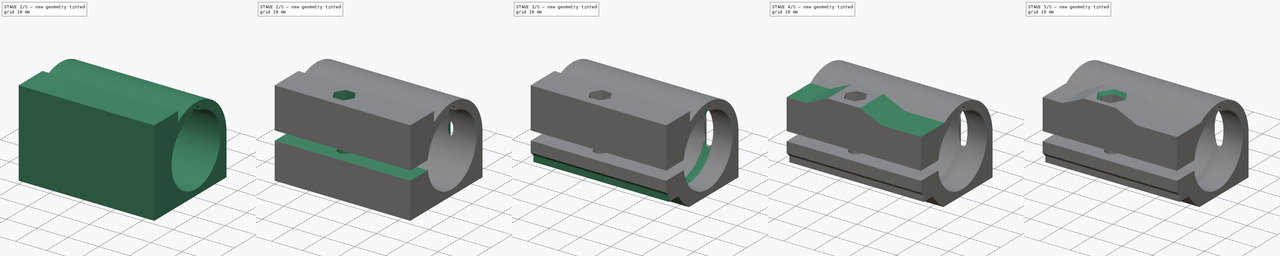
[diagram: build sequence overview — one tinted view per stage of 5, left to right]
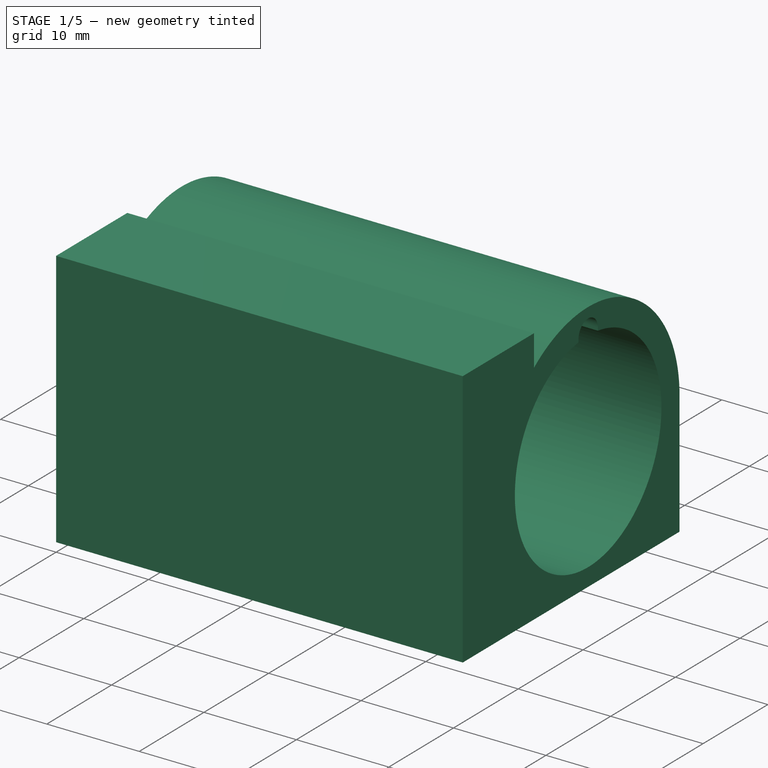
[diagram: stage 1 of 5 — iso view after this stage's code; geometry added in this stage tinted green]
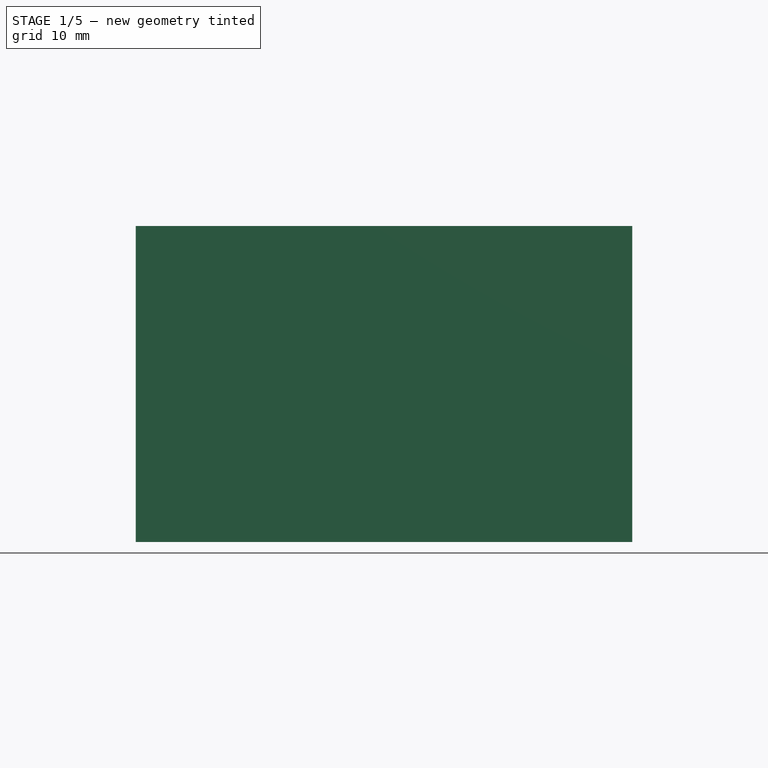
[diagram: stage 1 of 5 — front view after this stage's code; geometry added in this stage tinted green]
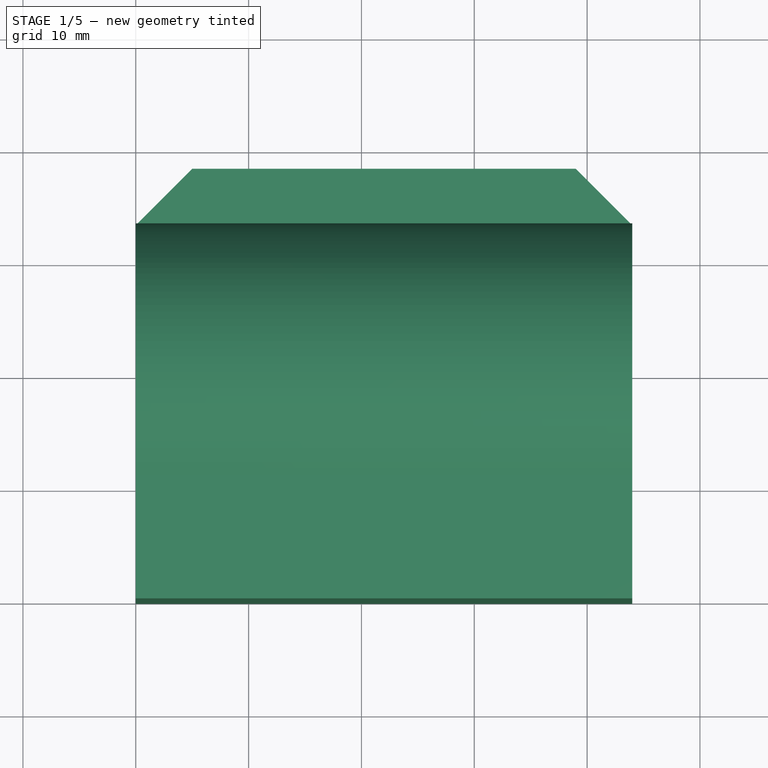
[diagram: stage 1 of 5 — top view after this stage's code; geometry added in this stage tinted green]
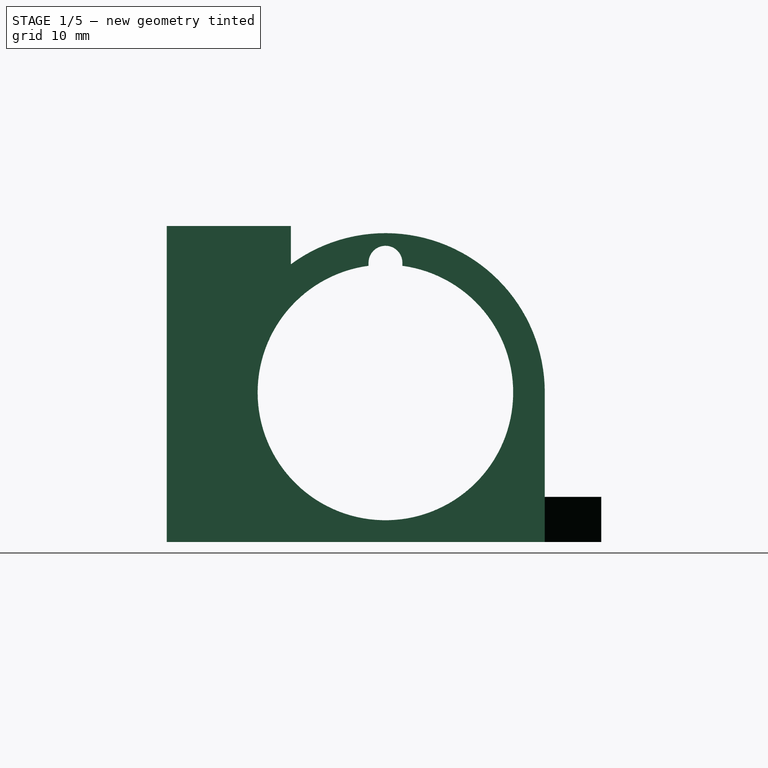
[diagram: stage 1 of 5 — right view after this stage's code; geometry added in this stage tinted green]
FCSTD DOCUMENT  (FreeCAD 0.18R4 (GitTag))
Label: x_bearing_holder_v0.2.2
License: All rights reserved
LicenseURL: http://en.wikipedia.org/wiki/All_rights_reserved
objects: Sketcher::SketchObject×19, PartDesign::Pocket×11, PartDesign::Chamfer×3, PartDesign::Pad×2, PartDesign::Groove×1, PartDesign::Fillet×1, PartDesign::Body×1
note: 52 computed .brp shape members not serialized (recipe doc carries the construction recipe); baked Part::Feature solids carry a one-line shape summary decoded from their .brp

FEATURE [Sketcher::SketchObject] Sketch
  MapMode = 5
  Support = -> [XY_Plane]
  sketch-geometry (8):
    g0: LineSegment [constr] StartX=0 StartY=33.5 StartZ=0 EndX=44 EndY=33.5 EndZ=0
    g1: LineSegment StartX=44 StartY=33.5 StartZ=0 EndX=44 EndY=0 EndZ=0
    g2: LineSegment [constr] StartX=44 StartY=0 StartZ=0 EndX=0 EndY=0 EndZ=0
    g3: LineSegment StartX=0 StartY=0 StartZ=0 EndX=0 EndY=33.5 EndZ=0
    g4: LineSegment StartX=0 StartY=33.5 StartZ=0 EndX=5 EndY=38.5 EndZ=0
    g5: LineSegment StartX=5 StartY=38.5 StartZ=0 EndX=39 EndY=38.5 EndZ=0
    g6: LineSegment StartX=39 StartY=38.5 StartZ=0 EndX=44 EndY=33.5 EndZ=0
    g7: LineSegment StartX=0 StartY=0 StartZ=0 EndX=44 EndY=0 EndZ=0
  constraints (21):
    c: Horizontal(g0)
    c: Coincident(g0,g1)
    c: Vertical(g1)
    c: Coincident(g1,g2)
    c: Coincident(g2,g3)
    c: Coincident(g3,g0)
    c: Vertical(g3)
    c: Coincident(g3,g4)
    c: Coincident(g4,g5)
    c: Horizontal(g5)
    c: Coincident(g5,g6)
    c: Coincident(g6,g1)
    c: DistanceX(g2,g2) = 44
    c: Coincident(g7,g1)
    c: Equal(g4,g6)
    c: Angle(g4) = 0.785398
    c: DistanceY(g3,g3) = 33.5
    c: Coincident(g2,g-1)
    c: DistanceY(g4,g4) = 5
    c: Coincident(g7,g3)
    c: Horizontal(g7)
FEATURE [Sketcher::SketchObject] Sketch001
  MapMode = 5
  Placement = pos=(0,0,0) rot=(0.57735,-0.57735,-0.57735;2.0944rad)
  sketch-geometry (1):
    g0: Circle CenterX=-19.375 CenterY=12.25 CenterZ=0 NormalX=0 NormalY=0 NormalZ=1 AngleXU=0 Radius=11.325
  constraints (3):
    c: DistanceX(g0) = -19.375
    c: DistanceY(g0) = 12.25
    c: Radius(g0) = 11.325
FEATURE [Sketcher::SketchObject] Sketch002
  MapMode = 5
  Placement = pos=(0,0,27) rot=(0,0,1;0rad)
  sketch-geometry (5):
    g0: LineSegment StartX=35.625 StartY=38.5 StartZ=0 EndX=0 EndY=38.5 EndZ=0
    g1: LineSegment StartX=0 StartY=38.5 StartZ=0 EndX=0 EndY=33.5 EndZ=0
    g2: LineSegment StartX=0 StartY=33.5 StartZ=0 EndX=31.625 EndY=33.5 EndZ=0
    g3: LineSegment StartX=31.625 StartY=33.5 StartZ=0 EndX=31.625 EndY=34.5 EndZ=0
    g4: ArcOfCircle CenterX=35.625 CenterY=34.5 CenterZ=0 NormalX=0 NormalY=0 NormalZ=1 AngleXU=0 Radius=4 StartAngle=1.5708 EndAngle=3.14159
  constraints (14):
    c: Coincident(g0,g1)
    c: Horizontal(g0)
    c: Vertical(g1)
    c: PointOnObject(g1,g-2)
    c: DistanceY(g1) = 33.5
    c: DistanceY(g1,g1) = 5
    c: Coincident(g2,g1)
    c: Coincident(g3,g2)
    c: Vertical(g3)
    c: DistanceX(g4) = 35.625
    c: DistanceY(g4) = 34.5
    c: Horizontal(g2)
    c: Tangent(g0,g4) = -1.5708
    c: Tangent(g4,g3) = 1.5708
FEATURE [Sketcher::SketchObject] Sketch003
  MapMode = 5
  Placement = pos=(0,0,27) rot=(0,0,1;0rad)
  sketch-geometry (14):
    g0: ArcOfCircle CenterX=35.625 CenterY=34.5 CenterZ=0 NormalX=0 NormalY=0 NormalZ=1 AngleXU=0 Radius=2 StartAngle=0 EndAngle=3.14159
    g1: ArcOfCircle CenterX=35.625 CenterY=32.5 CenterZ=0 NormalX=0 NormalY=0 NormalZ=1 AngleXU=0 Radius=2 StartAngle=3.14159 EndAngle=6.28319
    g2: LineSegment StartX=33.625 StartY=34.5 StartZ=0 EndX=33.625 EndY=32.5 EndZ=0
    g3: LineSegment StartX=37.625 StartY=34.5 StartZ=0 EndX=37.625 EndY=32.5 EndZ=0
    g4: Circle CenterX=18.75 CenterY=5.5 CenterZ=0 NormalX=0 NormalY=0 NormalZ=1 AngleXU=0 Radius=2
    g5: LineSegment [constr] StartX=2.75 StartY=67.375 StartZ=0 EndX=34.75 EndY=67.375 EndZ=0
    g6: LineSegment [constr] StartX=34.75 StartY=67.375 StartZ=0 EndX=34.75 EndY=8.375 EndZ=0
    g7: LineSegment [constr] StartX=34.75 StartY=8.375 StartZ=0 EndX=2.75 EndY=8.375 EndZ=0
    g8: LineSegment [constr] StartX=2.75 StartY=8.375 StartZ=0 EndX=2.75 EndY=67.375 EndZ=0
    g9: LineSegment [constr] StartX=2.75 StartY=8.375 StartZ=0 EndX=34.75 EndY=8.375 EndZ=0
    g10: LineSegment [constr] StartX=34.75 StartY=8.375 StartZ=0 EndX=34.75 EndY=30.375 EndZ=0
    g11: LineSegment [constr] StartX=34.75 StartY=30.375 StartZ=0 EndX=2.75 EndY=30.375 EndZ=0
    g12: LineSegment [constr] StartX=2.75 StartY=30.375 StartZ=0 EndX=2.75 EndY=8.375 EndZ=0
    g13: LineSegment [constr] StartX=2.75 StartY=19.375 StartZ=0 EndX=34.75 EndY=19.375 EndZ=0
  constraints (39):
    c: Tangent(g0,g3) = 1.5708
    c: Tangent(g0,g2) = -1.5708
    c: Tangent(g2,g1) = -1.5708
    c: Tangent(g3,g1) = 1.5708
    c: Vertical(g2)
    c: Equal(g0,g1)
    c: DistanceY(g1) = 32.5
    c: DistanceY(g2,g2) = 2
    c: Radius(g1) = 2
    c: Equal(g4,g1)
    c: Coincident(g5,g6)
    c: Coincident(g6,g7)
    c: Coincident(g7,g8)
    c: Coincident(g8,g5)
    c: Horizontal(g5)
    c: Horizontal(g7)
    c: Vertical(g6)
    c: Vertical(g8)
    c: DistanceX(g5,g5) = 32
    c: DistanceX(g5) = 2.75
    c: Coincident(g9,g10)
    c: Coincident(g10,g11)
    c: Coincident(g11,g12)
    c: Coincident(g12,g9)
    c: Horizontal(g11)
    c: Vertical(g10)
    c: Vertical(g12)
    c: Coincident(g6,g9)
    c: Coincident(g7,g9)
    c: DistanceY(g6,g10) = 22
    c: PointOnObject(g13,g8)
    c: PointOnObject(g13,g6)
    c: Horizontal(g13)
    c: DistanceY(g13) = 19.375
    c: DistanceY(g13,g10) = 11
    c: DistanceX(g0) = 35.625
    c: DistanceY(g8,g8) = 59
    c: DistanceX(g4,g6) = 16
    c: DistanceY(g4) = 5.5
FEATURE [Sketcher::SketchObject] Sketch004
  MapMode = 5
  Placement = pos=(0,0,27) rot=(0,0,1;0rad)
  sketch-geometry (7):
    g0: LineSegment StartX=17.075 StartY=8.40119 StartZ=0 EndX=15.4 EndY=5.5 EndZ=0
    g1: LineSegment StartX=15.4 StartY=5.5 StartZ=0 EndX=17.075 EndY=2.59881 EndZ=0
    g2: LineSegment StartX=17.075 StartY=2.59881 StartZ=0 EndX=20.425 EndY=2.59881 EndZ=0
    g3: LineSegment StartX=20.425 StartY=2.59881 StartZ=0 EndX=22.1 EndY=5.5 EndZ=0
    g4: LineSegment StartX=22.1 StartY=5.5 StartZ=0 EndX=20.425 EndY=8.40119 EndZ=0
    g5: LineSegment StartX=20.425 StartY=8.40119 StartZ=0 EndX=17.075 EndY=8.40119 EndZ=0
    g6: Circle [constr] CenterX=18.75 CenterY=5.5 CenterZ=0 NormalX=0 NormalY=0 NormalZ=1 AngleXU=0 Radius=3.35
  constraints (17):
    c: Coincident(g0,g1)
    c: Coincident(g1,g2)
    c: Coincident(g2,g3)
    c: Coincident(g3,g4)
    c: Coincident(g4,g5)
    c: Coincident(g5,g0)
    c: Equal(g0, g1-g5) x5
    c: PointOnObject(g0,g6)
    c: PointOnObject(g1,g6)
    c: PointOnObject(g2,g6)
    c: PointOnObject(g3,g6)
    c: PointOnObject(g4,g6)
    c: PointOnObject(g5,g6)
    c: Horizontal(g5)
    c: DistanceY(g6) = 5.5
    c: Radius(g6) = 3.35
    c: DistanceX(g-1,g6) = 18.75
FEATURE [Sketcher::SketchObject] Sketch005
  MapMode = 5
  Placement = pos=(0,0,0) rot=(0.57735,-0.57735,-0.57735;2.0944rad)
  sketch-geometry (4):
    g0: LineSegment StartX=-10.5 StartY=13.75 StartZ=0 EndX=3.5 EndY=13.75 EndZ=0
    g1: LineSegment StartX=3.5 StartY=13.75 StartZ=0 EndX=3.5 EndY=10.75 EndZ=0
    g2: LineSegment StartX=3.5 StartY=10.75 StartZ=0 EndX=-10.5 EndY=10.75 EndZ=0
    g3: LineSegment StartX=-10.5 StartY=10.75 StartZ=0 EndX=-10.5 EndY=13.75 EndZ=0
  constraints (12):
    c: Coincident(g0,g1)
    c: Coincident(g1,g2)
    c: Coincident(g2,g3)
    c: Coincident(g3,g0)
    c: Horizontal(g0)
    c: Horizontal(g2)
    c: Vertical(g1)
    c: Vertical(g3)
    c: DistanceX(g1) = 3.5
    c: DistanceY(g1,g1) = 3
    c: DistanceX(g0,g0) = 14
    c: DistanceY(g2) = 10.75
FEATURE [Sketcher::SketchObject] Sketch006
  MapMode = 5
  Placement = pos=(54,0,0) rot=(0.57735,0.57735,0.57735;2.0944rad)
  sketch-geometry (8):
    g0: ArcOfCircle CenterX=19.5 CenterY=12.25 CenterZ=0 NormalX=0 NormalY=0 NormalZ=1 AngleXU=0 Radius=16 StartAngle=3.67834 EndAngle=4.11735
    g1: LineSegment StartX=10.5313 StartY=-1 StartZ=0 EndX=-3.5 EndY=-1 EndZ=0
    g2: LineSegment StartX=-3.5 StartY=-1 StartZ=0 EndX=-3.5 EndY=10.75 EndZ=0
    g3: LineSegment StartX=-3.5 StartY=10.75 StartZ=0 EndX=0 EndY=10.75 EndZ=0
    g4: LineSegment StartX=0 StartY=10.75 StartZ=0 EndX=0 EndY=7.25 EndZ=0
    g5: LineSegment StartX=1.25 StartY=4.06847 StartZ=0 EndX=5.75 EndY=4.06847 EndZ=0
    g6: LineSegment StartX=1.25 StartY=4.06847 StartZ=0 EndX=1.25 EndY=6 EndZ=0
    g7: LineSegment StartX=1.25 StartY=6 StartZ=0 EndX=0 EndY=7.25 EndZ=0
  constraints (25):
    c: DistanceX(g0) = 19.5
    c: DistanceY(g0) = 12.25
    c: Horizontal(g1)
    c: Coincident(g1,g2)
    c: Vertical(g2)
    c: Coincident(g2,g3)
    c: Horizontal(g3)
    c: Coincident(g3,g4)
    c: Vertical(g4)
    c: Horizontal(g5)
    c: Coincident(g0,g5)
    c: PointOnObject(g3,g-2)
    c: DistanceX(g3,g3) = 3.5
    c: DistanceY(g3) = 10.75
    c: Coincident(g0,g1)
    c: Radius(g0) = 16
    c: Coincident(g5,g6)
    c: Vertical(g6)
    c: Coincident(g6,g7)
    c: Coincident(g7,g4)
    c: Angle(g7) = 2.35619
    c: DistanceX(g5,g5) = 4.5
    c: DistanceY(g4,g4) = 3.5
    c: DistanceY(g7,g7) = 1.25
    c: DistanceY(g0) = -1
FEATURE [Sketcher::SketchObject] Sketch007
  MapMode = 5
  Placement = pos=(0,0,-1) rot=(1,0,0;3.14159rad)
  sketch-geometry (4):
    g0: Circle CenterX=27.38 CenterY=-35 CenterZ=0 NormalX=0 NormalY=0 NormalZ=1 AngleXU=0 Radius=2.35
    g1: Circle [constr] CenterX=27.38 CenterY=-35 CenterZ=0 NormalX=0 NormalY=0 NormalZ=1 AngleXU=0 Radius=2
    g2: Circle CenterX=11.38 CenterY=-35 CenterZ=0 NormalX=0 NormalY=0 NormalZ=1 AngleXU=0 Radius=2.35
    g3: LineSegment [constr] StartX=27.38 StartY=-35 StartZ=0 EndX=11.38 EndY=-35 EndZ=0
  constraints (10):
    c: DistanceY(g0) = -35
    c: Radius(g0) = 2.35
    c: Coincident(g1,g0)
    c: Radius(g1) = 2
    c: Coincident(g3,g0)
    c: Coincident(g3,g2)
    c: Horizontal(g3)
    c: DistanceX(g3,g3) = -16
    c: Radius(g2) = 2.35
    c: DistanceX(g2) = 11.38
FEATURE [Sketcher::SketchObject] Sketch008
  AttachmentOffset = pos=(0,0,1.5) rot=(0,0,1;0rad)
  MapMode = 5
  Placement = pos=(0,0,12.25) rot=(1,0,0;3.14159rad)
  sketch-geometry (18):
    g0: LineSegment [constr] StartX=34.75 StartY=-6.875 StartZ=0 EndX=36.25 EndY=-6.875 EndZ=0
    g1: LineSegment [constr] StartX=36.25 StartY=-6.875 StartZ=0 EndX=37.75 EndY=-8.375 EndZ=0
    g2: LineSegment [constr] StartX=37.75 StartY=-8.375 StartZ=0 EndX=34.75 EndY=-8.375 EndZ=0
    g3: LineSegment [constr] StartX=3.75 StartY=-8.375 StartZ=0 EndX=2.25 EndY=-6.875 EndZ=0
    g4: LineSegment [constr] StartX=2.25 StartY=-6.875 StartZ=0 EndX=0.75 EndY=-6.875 EndZ=0
    g5: LineSegment [constr] StartX=0.75 StartY=-6.875 StartZ=0 EndX=0.75 EndY=-8.375 EndZ=0
    g6: LineSegment [constr] StartX=0.75 StartY=-8.375 StartZ=0 EndX=3.75 EndY=-8.375 EndZ=0
    g7: LineSegment [constr] StartX=34.75 StartY=-6.875 StartZ=0 EndX=34.75 EndY=-8.375 EndZ=0
    g8: LineSegment [constr] StartX=3.75 StartY=-8.375 StartZ=0 EndX=3.75 EndY=-30.375 EndZ=0
    g9: LineSegment [constr] StartX=3.75 StartY=-19.375 StartZ=0 EndX=35.75 EndY=-19.375 EndZ=0
    g10: LineSegment StartX=37.75 StartY=-8.375 StartZ=0 EndX=37.75 EndY=-6.875 EndZ=0
    g11: LineSegment StartX=37.75 StartY=-6.875 StartZ=0 EndX=36.25 EndY=-6.875 EndZ=0
    g12: LineSegment StartX=36.25 StartY=-6.875 StartZ=0 EndX=34.75 EndY=-8.375 EndZ=0
    g13: LineSegment StartX=34.75 StartY=-8.375 StartZ=0 EndX=37.75 EndY=-8.375 EndZ=0
    g14: LineSegment StartX=3.75 StartY=-8.375 StartZ=0 EndX=3.75 EndY=-6.875 EndZ=0
    g15: LineSegment StartX=3.75 StartY=-6.875 StartZ=0 EndX=2.25 EndY=-6.875 EndZ=0
    g16: LineSegment StartX=2.25 StartY=-6.875 StartZ=0 EndX=0.75 EndY=-8.375 EndZ=0
    g17: LineSegment StartX=0.75 StartY=-8.375 StartZ=0 EndX=3.75 EndY=-8.375 EndZ=0
  constraints (49):
    c: Horizontal(g0)
    c: Coincident(g0,g1)
    c: Coincident(g1,g2)
    c: Horizontal(g2)
    c: DistanceY(g1,g1) = 1.5
    c: Coincident(g3,g4)
    c: Horizontal(g4)
    c: Coincident(g4,g5)
    c: Vertical(g5)
    c: Coincident(g5,g6)
    c: Coincident(g6,g3)
    c: Horizontal(g6)
    c: PointOnObject(g3,g2)
    c: DistanceX(g0,g0) = 1.5
    c: Angle(g3) = 2.35619
    c: Angle(g1) = -0.785398
    c: Coincident(g7,g0)
    c: Vertical(g7)
    c: Coincident(g2,g7)
    c: Equal(g5,g7)
    c: Equal(g4,g0)
    c: Vertical(g8)
    c: DistanceY(g8,g8) = 22
    c: PointOnObject(g9,g8)
    c: Horizontal(g9)
    c: DistanceY(g8,g9) = 11
    c: DistanceX(g9,g9) = 32
    c: DistanceY(g9) = -19.375
    c: Coincident(g3,g8)
    c: DistanceX(g3) = 3.75
    c: Coincident(g1,g10)
    c: Vertical(g10)
    c: Coincident(g10,g11)
    c: Horizontal(g11)
    c: Coincident(g11,g12)
    c: Coincident(g12,g13)
    c: Coincident(g13,g10)
    c: Coincident(g2,g12)
    c: Coincident(g0,g11)
    c: Vertical(g14)
    c: Coincident(g14,g15)
    c: Coincident(g15,g3)
    c: Horizontal(g15)
    c: Coincident(g15,g16)
    c: Coincident(g16,g5)
    c: Coincident(g16,g17)
    c: Coincident(g17,g14)
    c: Coincident(g3,g14)
    c: DistanceX(g12) = 34.75
FEATURE [Sketcher::SketchObject] Sketch010
  MapMode = 5
  Placement = pos=(0,0,27) rot=(0,0,1;0rad)
  sketch-geometry (1):
    g0: Circle CenterX=35.575 CenterY=4 CenterZ=0 NormalX=0 NormalY=0 NormalZ=1 AngleXU=0 Radius=2.75
  constraints (3):
    c: Radius(g0) = 2.75
    c: DistanceY(g0) = 4
    c: DistanceX(g0) = 35.575
FEATURE [Sketcher::SketchObject] Sketch013
  MapMode = 5
  Placement = pos=(0,0,-1) rot=(1,0,0;3.14159rad)
  sketch-geometry (1):
    g0: Circle CenterX=19.375 CenterY=-30.5 CenterZ=0 NormalX=0 NormalY=0 NormalZ=1 AngleXU=0 Radius=2.75
  constraints (3):
    c: DistanceY(g0) = -30.5
    c: DistanceX(g0) = 19.375
    c: Radius(g0) = 2.75
FEATURE [Sketcher::SketchObject] Sketch014
  MapMode = 5
  Placement = pos=(0,0,-1) rot=(1,0,0;3.14159rad)
  sketch-geometry (1):
    g0: Circle CenterX=18.75 CenterY=-5.5 CenterZ=0 NormalX=0 NormalY=0 NormalZ=1 AngleXU=0 Radius=3.5
  constraints (3):
    c: Radius(g0) = 3.5
    c: DistanceX(g0) = 18.75
    c: DistanceY(g0) = -5.5
FEATURE [Sketcher::SketchObject] Sketch016
  MapMode = 5
  Placement = pos=(0,0,0) rot=(0.57735,-0.57735,-0.57735;2.0944rad)
  sketch-geometry (10):
    g0: ArcOfCircle CenterX=-19.38 CenterY=12.25 CenterZ=0 NormalX=0 NormalY=0 NormalZ=1 AngleXU=0 Radius=14.12 StartAngle=0.935415 EndAngle=3.14159
    g1: LineSegment StartX=-11 StartY=27 StartZ=0 EndX=-38.5 EndY=27 EndZ=0
    g2: LineSegment StartX=-11 StartY=27 StartZ=0 EndX=-11 EndY=23.6144 EndZ=0
    g3: ArcOfCircle CenterX=-19.38 CenterY=12.25 CenterZ=0 NormalX=0 NormalY=0 NormalZ=1 AngleXU=0 Radius=1.5 StartAngle=3.14159 EndAngle=6.28319
    g4: ArcOfCircle CenterX=-19.38 CenterY=23.75 CenterZ=0 NormalX=0 NormalY=0 NormalZ=1 AngleXU=0 Radius=1.5 StartAngle=4e-16 EndAngle=3.14159
    g5: LineSegment StartX=-17.88 StartY=12.25 StartZ=0 EndX=-17.88 EndY=23.75 EndZ=0
    g6: LineSegment StartX=-20.88 StartY=12.25 StartZ=0 EndX=-20.88 EndY=23.75 EndZ=0
    g7: LineSegment StartX=-33.5 StartY=3 StartZ=0 EndX=-38.5 EndY=3 EndZ=0
    g8: LineSegment StartX=-38.5 StartY=3 StartZ=0 EndX=-38.5 EndY=27 EndZ=0
    g9: LineSegment StartX=-33.5 StartY=12.25 StartZ=0 EndX=-33.5 EndY=3 EndZ=0
  constraints (27):
    c: Horizontal(g1)
    c: DistanceX(g0) = -33.5
    c: DistanceY(g1) = 27
    c: DistanceX(g0) = -19.38
    c: DistanceY(g0) = 12.25
    c: Vertical(g2)
    c: Coincident(g1,g2)
    c: Coincident(g0,g2)
    c: Tangent(g3,g6) = 1.5708
    c: Tangent(g3,g5) = -1.5708
    c: Tangent(g5,g4) = -1.5708
    c: Tangent(g6,g4) = 1.5708
    c: Vertical(g5)
    c: Equal(g3,g4)
    c: Coincident(g0,g3)
    c: DistanceY(g5,g5) = 11.5
    c: Radius(g4) = 1.5
    c: Horizontal(g7)
    c: Coincident(g7,g8)
    c: Vertical(g8)
    c: DistanceX(g7) = -38.5
    c: DistanceY(g7) = 3
    c: Coincident(g1,g8)
    c: Coincident(g9,g7)
    c: Vertical(g9)
    c: Tangent(g9,g0) = -1.5708
    c: DistanceX(g1,g1) = 27.5
FEATURE [PartDesign::Pad] Pad
  Length = 27
  Length2 = 1
  Profile = -> Sketch
  Refine = true
  Type = 4
FEATURE [PartDesign::Pocket] Pocket
  BaseFeature = -> Pad
  Length = 22
  Length2 = 100
  Profile = -> Sketch002
  Refine = true
  Type = 0
FEATURE [PartDesign::Pocket] Pocket001
  BaseFeature = -> Pocket
  Length = 31.62
  Length2 = 100
  Profile = -> Sketch016
  Refine = true
  Type = 1
FEATURE [Sketcher::SketchObject] Sketch009
  MapMode = 5
  Placement = pos=(0,0,27) rot=(0,0,1;0rad)
  sketch-geometry (1):
    g0: Circle CenterX=35.62 CenterY=4 CenterZ=0 NormalX=0 NormalY=0 NormalZ=1 AngleXU=0 Radius=2.35
  constraints (3):
    c: Radius(g0) = 2.35
    c: DistanceY(g0) = 4
    c: DistanceX(g0) = 35.62
FEATURE [Sketcher::SketchObject] Sketch018
  MapMode = 5
  Placement = pos=(0,11,0) rot=(0,0.707107,0.707107;3.14159rad)
  sketch-geometry (12):
    g0: LineSegment StartX=-30.9696 StartY=23.75 StartZ=0 EndX=-24 EndY=27 EndZ=0
    g1: LineSegment StartX=-24 StartY=27 StartZ=0 EndX=-44 EndY=27 EndZ=0
    g2: LineSegment StartX=-13.5 StartY=27 StartZ=0 EndX=0 EndY=27 EndZ=0
    g3: LineSegment StartX=0 StartY=27 StartZ=0 EndX=0 EndY=23.75 EndZ=0
    g4: LineSegment StartX=0 StartY=23.75 StartZ=0 EndX=-6.53035 EndY=23.75 EndZ=0
    g5: LineSegment StartX=-6.53035 StartY=23.75 StartZ=0 EndX=-13.5 EndY=27 EndZ=0
    g6: LineSegment [constr] StartX=-44 StartY=27 StartZ=0 EndX=-6.53035 EndY=27 EndZ=0
    g7: LineSegment [constr] StartX=-6.53035 StartY=27 StartZ=0 EndX=-6.53035 EndY=23.75 EndZ=0
    g8: LineSegment [constr] StartX=-6.53035 StartY=23.75 StartZ=0 EndX=-44 EndY=23.75 EndZ=0
    g9: LineSegment [constr] StartX=-44 StartY=23.75 StartZ=0 EndX=-44 EndY=27 EndZ=0
    g10: LineSegment StartX=-30.9696 StartY=23.75 StartZ=0 EndX=-44 EndY=23.75 EndZ=0
    g11: LineSegment StartX=-44 StartY=23.75 StartZ=0 EndX=-44 EndY=27 EndZ=0
  constraints (33):
    c: Coincident(g0,g1)
    c: Horizontal(g1)
    c: PointOnObject(g2,g-2)
    c: Horizontal(g2)
    c: Coincident(g2,g3)
    c: PointOnObject(g3,g-2)
    c: Coincident(g3,g4)
    c: Horizontal(g4)
    c: Coincident(g5,g2)
    c: DistanceY(g1) = 27
    c: Angle(g0) = 0.436332
    c: Angle(g5) = 2.70526
    c: Coincident(g6,g7)
    c: Coincident(g7,g8)
    c: Coincident(g8,g9)
    c: Coincident(g9,g6)
    c: Horizontal(g6)
    c: Horizontal(g8)
    c: Vertical(g7)
    c: Vertical(g9)
    c: Coincident(g6,g1)
    c: PointOnObject(g2,g6)
    c: DistanceX(g2,g2) = 13.5
    c: Coincident(g4,g5)
    c: Coincident(g4,g7)
    c: Coincident(g0,g10)
    c: Horizontal(g10)
    c: Coincident(g10,g11)
    c: Coincident(g1,g11)
    c: DistanceX(g1) = -44
    c: Coincident(g8,g10)
    c: DistanceY(g11,g11) = 3.25
    c: DistanceX(g0,g2) = 10.5
FEATURE [Sketcher::SketchObject] Sketch020
  MapMode = 5
  Placement = pos=(0,38.5,0) rot=(0,0.707107,0.707107;3.14159rad)
  sketch-geometry (4):
    g0: LineSegment StartX=-22.125 StartY=0 StartZ=0 EndX=-16.625 EndY=0 EndZ=0
    g1: LineSegment StartX=-16.625 StartY=0 StartZ=0 EndX=-16.625 EndY=4 EndZ=0
    g2: LineSegment StartX=-16.625 StartY=4 StartZ=0 EndX=-22.125 EndY=4 EndZ=0
    g3: LineSegment StartX=-22.125 StartY=4 StartZ=0 EndX=-22.125 EndY=0 EndZ=0
  constraints (12):
    c: Coincident(g0,g1)
    c: Coincident(g1,g2)
    c: Coincident(g2,g3)
    c: Coincident(g3,g0)
    c: Horizontal(g0)
    c: Horizontal(g2)
    c: Vertical(g1)
    c: Vertical(g3)
    c: PointOnObject(g0,g-1)
    c: DistanceY(g1,g1) = 4
    c: DistanceX(g2,g2) = 5.5
    c: DistanceX(g2) = -22.125
FEATURE [Sketcher::SketchObject] Sketch021
  AttachmentOffset = pos=(0,0,-1) rot=(0,0,1;0rad)
  MapMode = 5
  Placement = pos=(0,0,0) rot=(1,0,0;3.14159rad)
  sketch-geometry (7):
    g0: LineSegment StartX=16.4738 StartY=-32.175 StartZ=0 EndX=19.375 EndY=-33.85 EndZ=0
    g1: LineSegment StartX=19.375 StartY=-33.85 StartZ=0 EndX=22.2762 EndY=-32.175 EndZ=0
    g2: LineSegment StartX=22.2762 StartY=-32.175 StartZ=0 EndX=22.2762 EndY=-28.825 EndZ=0
    g3: LineSegment StartX=22.2762 StartY=-28.825 StartZ=0 EndX=19.375 EndY=-27.15 EndZ=0
    g4: LineSegment StartX=19.375 StartY=-27.15 StartZ=0 EndX=16.4738 EndY=-28.825 EndZ=0
    g5: LineSegment StartX=16.4738 StartY=-28.825 StartZ=0 EndX=16.4738 EndY=-32.175 EndZ=0
    g6: Circle [constr] CenterX=19.375 CenterY=-30.5 CenterZ=0 NormalX=0 NormalY=0 NormalZ=1 AngleXU=0 Radius=3.35
  constraints (15):
    c: Coincident(g0,g1)
    c: Coincident(g1,g2)
    c: Coincident(g2,g3)
    c: Coincident(g3,g4)
    c: Coincident(g4,g5)
    c: Coincident(g5,g0)
    c: Equal(g0, g1-g5) x5
    c: PointOnObject(g0,g6)
    c: PointOnObject(g1,g6)
    c: PointOnObject(g2,g6)
    c: PointOnObject(g3,g6)
    c: PointOnObject(g4,g6)
    c: PointOnObject(g5,g6)
    c: Radius(g6) = 3.35
    c: Vertical(g5)
FEATURE [PartDesign::Pocket] Pocket002
  BaseFeature = -> Pocket001
  Length = 5
  Length2 = 100
  Profile = -> Sketch001
  Refine = true
  Type = 1
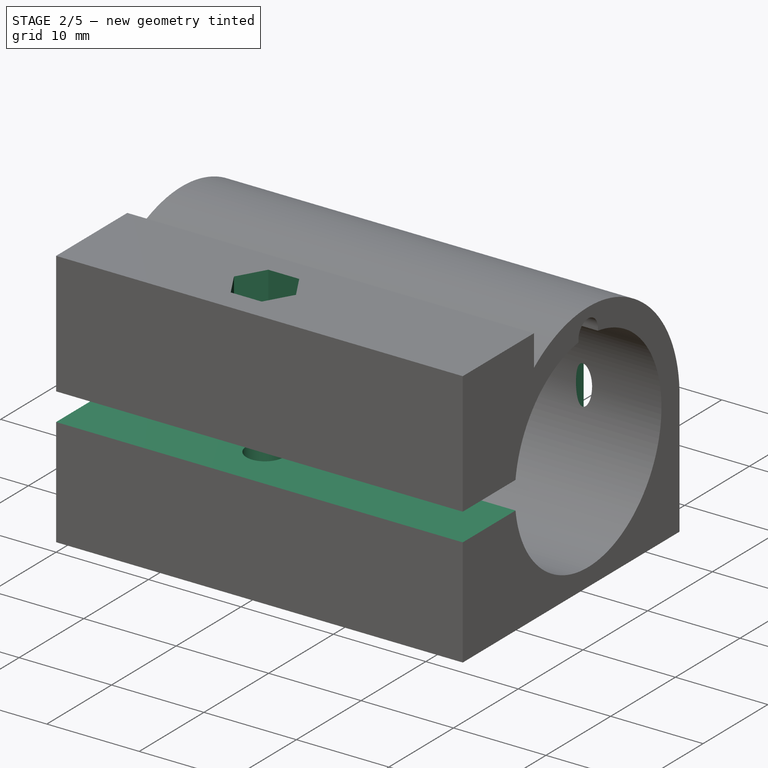
[diagram: stage 2 of 5 — iso view after this stage's code; geometry added in this stage tinted green]
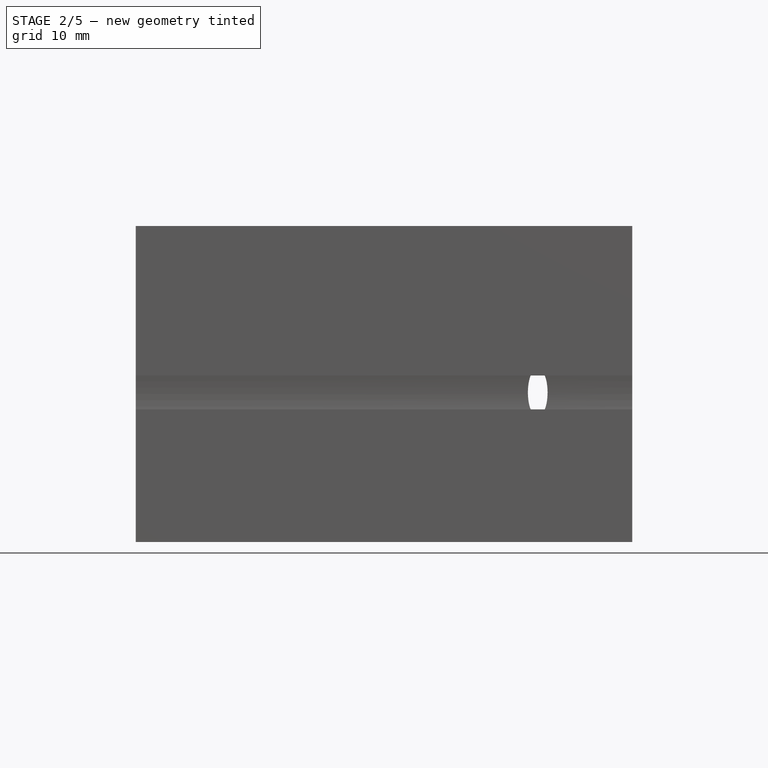
[diagram: stage 2 of 5 — front view after this stage's code; geometry added in this stage tinted green]
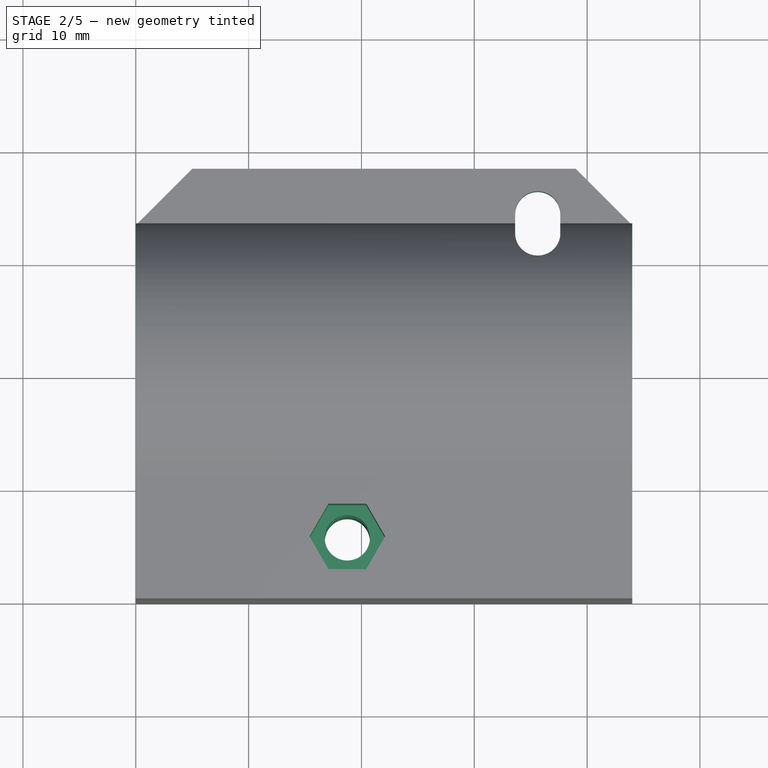
[diagram: stage 2 of 5 — top view after this stage's code; geometry added in this stage tinted green]
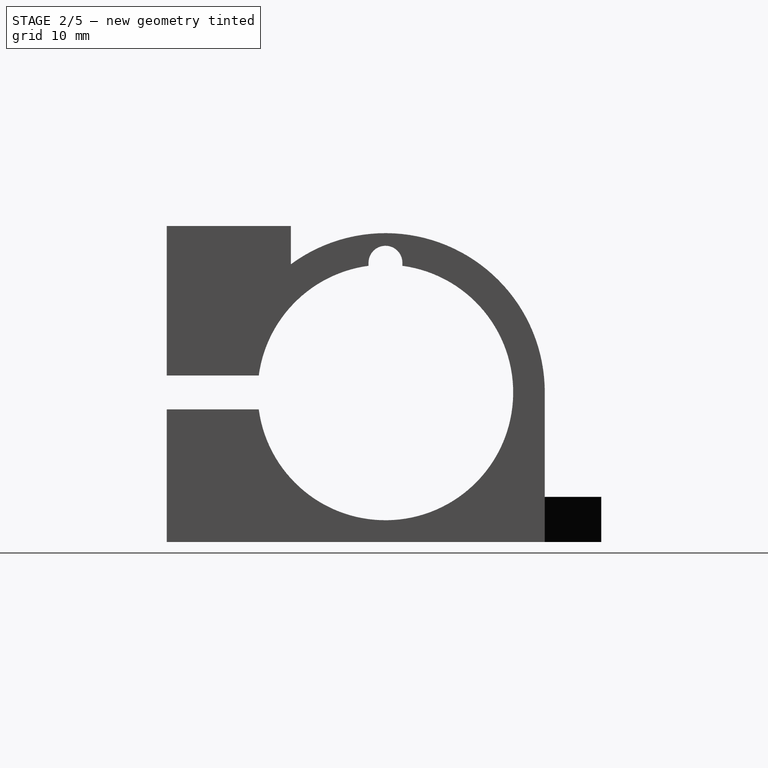
[diagram: stage 2 of 5 — right view after this stage's code; geometry added in this stage tinted green]
FEATURE [PartDesign::Pocket] Pocket003
  BaseFeature = -> Pocket002
  Length = 5
  Length2 = 100
  Profile = -> Sketch003
  Refine = true
  Type = 1
FEATURE [PartDesign::Pocket] Pocket004
  BaseFeature = -> Pocket003
  Length = 8
  Length2 = 100
  Profile = -> Sketch004
  Refine = true
  Type = 0
FEATURE [PartDesign::Pocket] Pocket005
  BaseFeature = -> Pocket004
  Length = 5
  Length2 = 100
  Profile = -> Sketch005
  Refine = true
  Type = 1
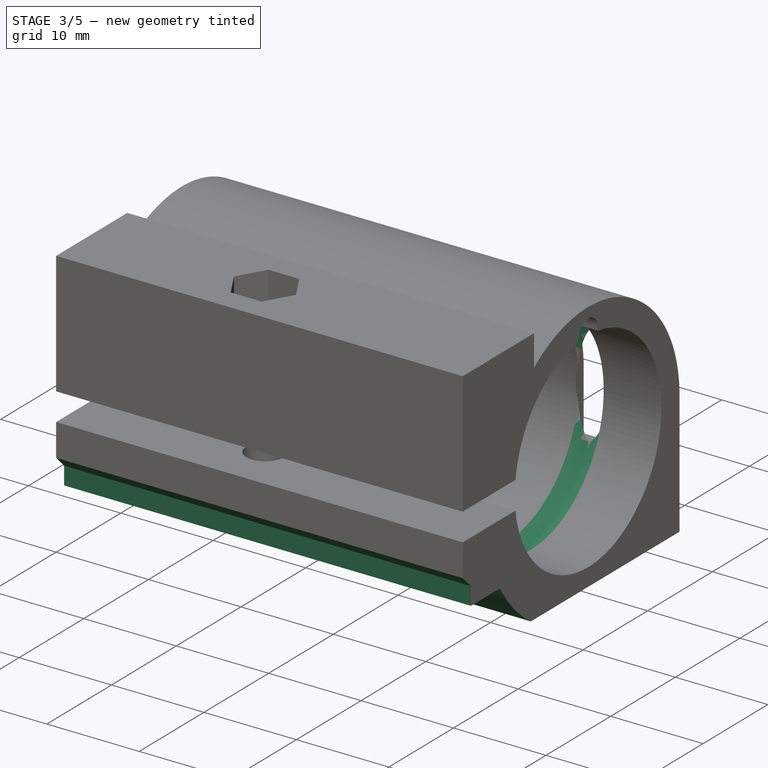
[diagram: stage 3 of 5 — iso view after this stage's code; geometry added in this stage tinted green]
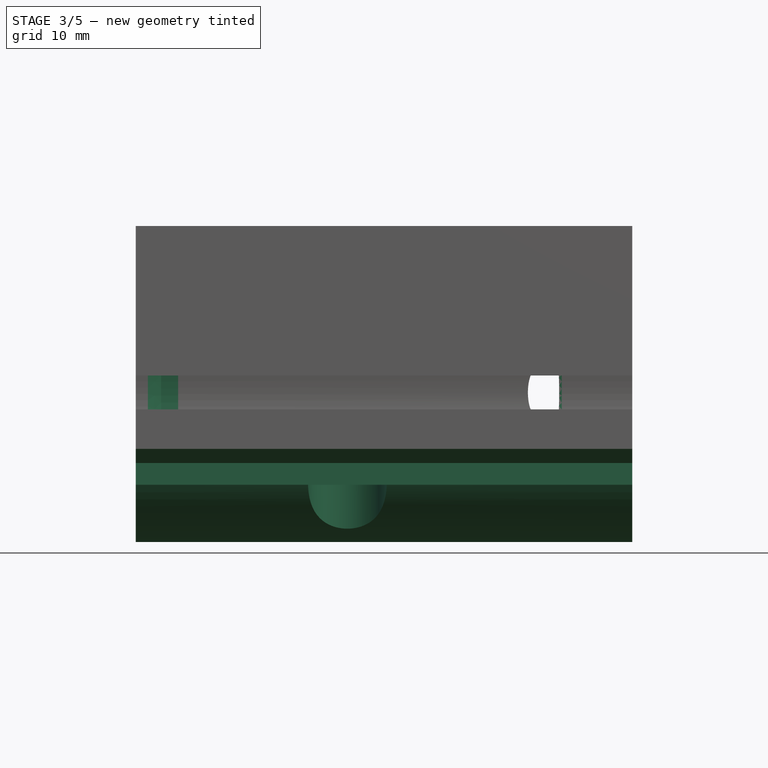
[diagram: stage 3 of 5 — front view after this stage's code; geometry added in this stage tinted green]
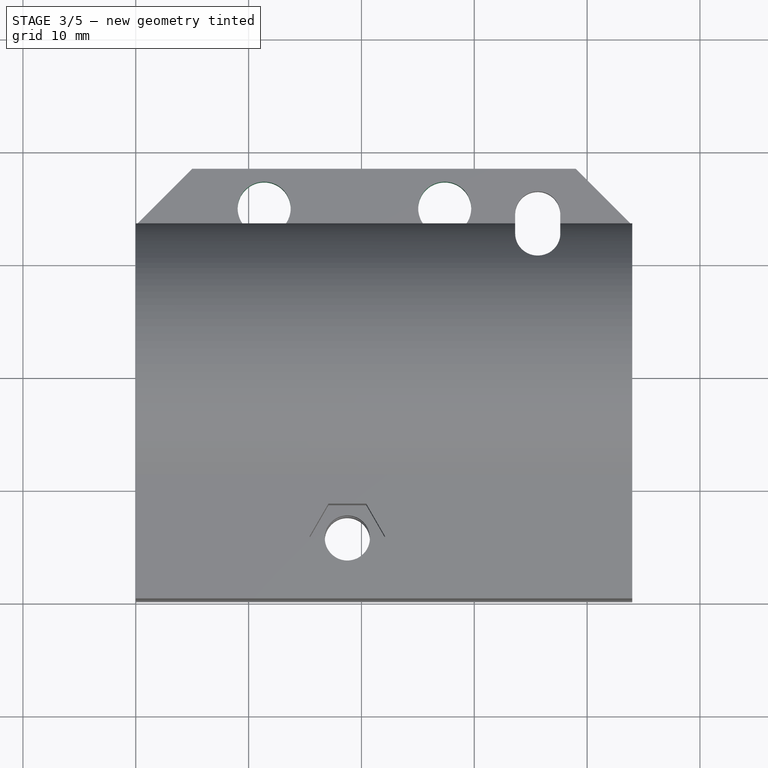
[diagram: stage 3 of 5 — top view after this stage's code; geometry added in this stage tinted green]
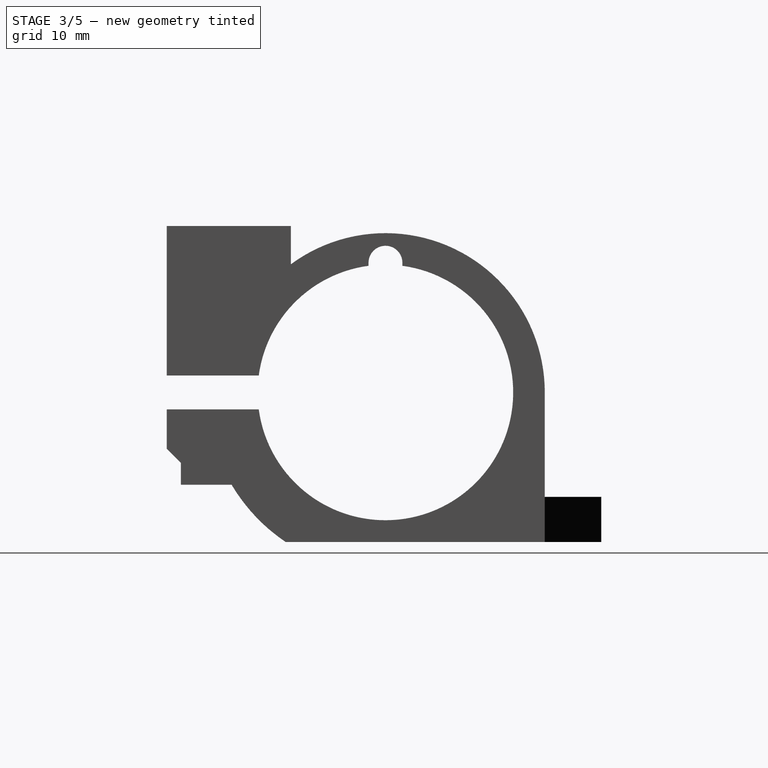
[diagram: stage 3 of 5 — right view after this stage's code; geometry added in this stage tinted green]
FEATURE [PartDesign::Pocket] Pocket006
  BaseFeature = -> Pocket005
  Length = 5
  Length2 = 100
  Profile = -> Sketch006
  Refine = true
  Type = 1
FEATURE [PartDesign::Pocket] Pocket007
  BaseFeature = -> Pocket006
  Length = 7
  Length2 = 100
  Profile = -> Sketch007
  Refine = true
  Type = 0
FEATURE [PartDesign::Groove] Groove
  Angle = 360
  Axis = (32,0,0)
  Base = (3.75,19.375,12.25)
  BaseFeature = -> Pocket007
  Profile = -> Sketch008
  ReferenceAxis = -> Sketch008 [Axis9]
  Refine = true
  Reversed = true
FEATURE [PartDesign::Pocket] Pocket008
  BaseFeature = -> Groove
  Length = 5.5
  Length2 = 100
  Profile = -> Sketch014
  Refine = true
  Type = 0
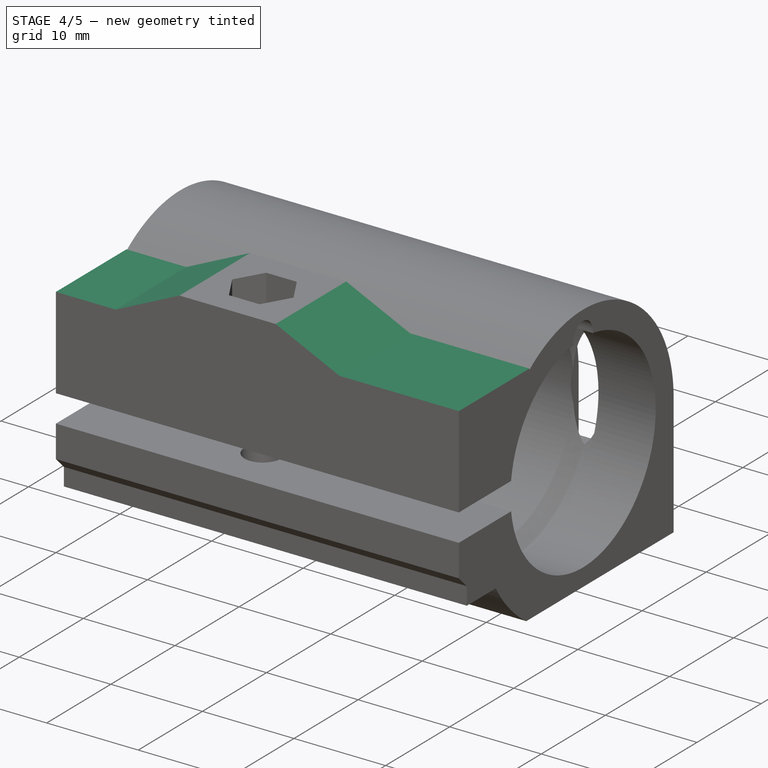
[diagram: stage 4 of 5 — iso view after this stage's code; geometry added in this stage tinted green]
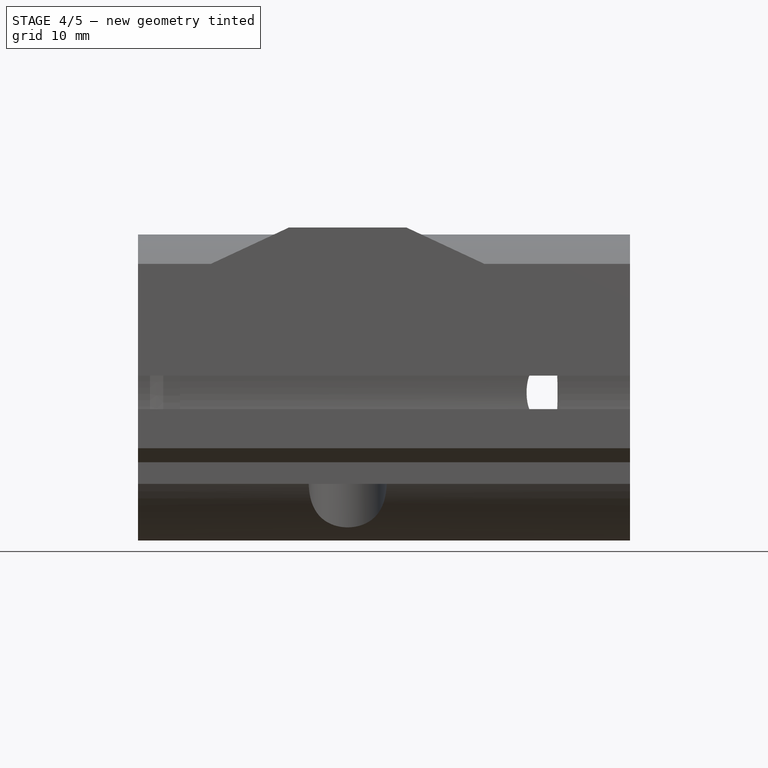
[diagram: stage 4 of 5 — front view after this stage's code; geometry added in this stage tinted green]
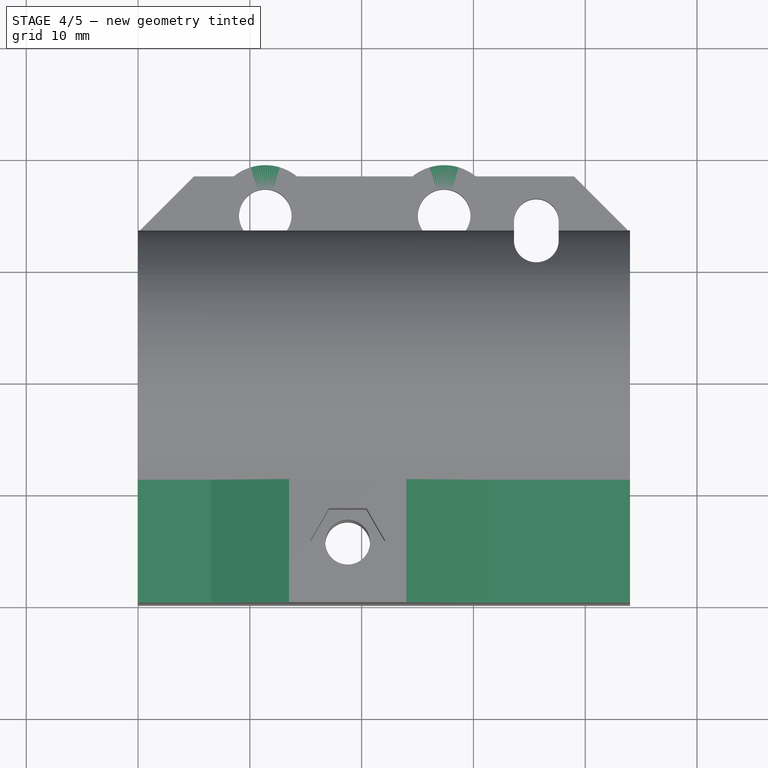
[diagram: stage 4 of 5 — top view after this stage's code; geometry added in this stage tinted green]
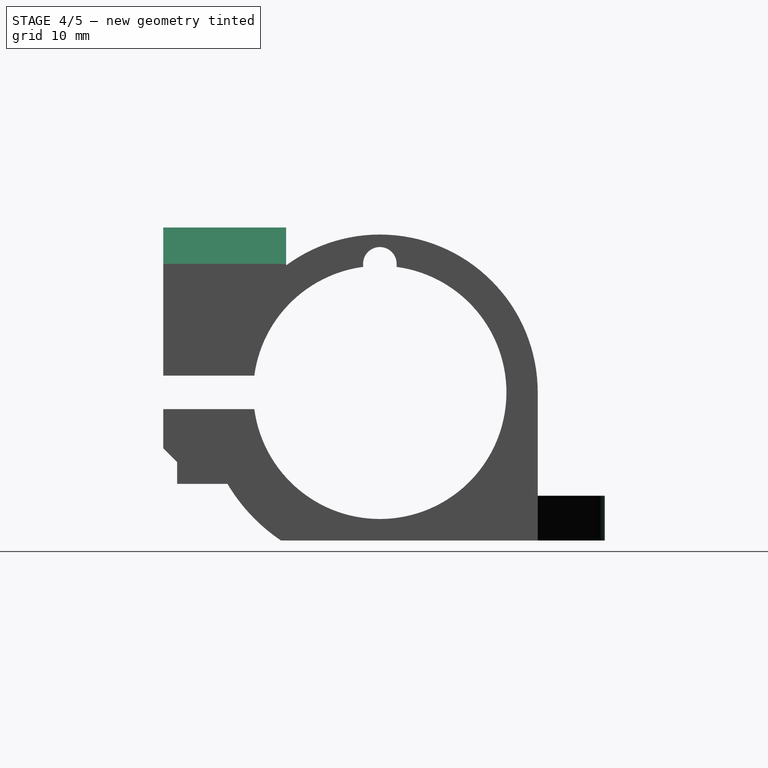
[diagram: stage 4 of 5 — right view after this stage's code; geometry added in this stage tinted green]
FEATURE [PartDesign::Pocket] Pocket009
  BaseFeature = -> Pocket008
  Length = 5
  Length2 = 100
  Profile = -> Sketch018
  Refine = true
  Type = 1
FEATURE [Sketcher::SketchObject] Sketch022
  ExternalGeometry = -> [Pocket009]
  MapMode = 5
  Placement = pos=(0,0,-1) rot=(1,0,0;3.14159rad)
  Support = -> [Pocket009]
  sketch-geometry (2):
    g0: Circle CenterX=27.38 CenterY=-35 CenterZ=0 NormalX=0 NormalY=0 NormalZ=1 AngleXU=0 Radius=2.75
    g1: Circle CenterX=11.38 CenterY=-35 CenterZ=0 NormalX=0 NormalY=0 NormalZ=1 AngleXU=0 Radius=2.75
  constraints (4):
    c: Radius(g0) = 2.75
    c: Equal(g0,g1)
    c: Coincident(g1,g-3)
    c: Coincident(g0,g-4)
FEATURE [PartDesign::Pocket] Pocket010
  BaseFeature = -> Pocket009
  Length = 0.75
  Length2 = 100
  Profile = -> Sketch022
  Refine = true
  Type = 0
FEATURE [Sketcher::SketchObject] Sketch023
  ExternalGeometry = -> [Pocket010]
  MapMode = 5
  Placement = pos=(0,0,3) rot=(0,0,1;0rad)
  Support = -> [Pocket010]
  sketch-geometry (4):
    g0: ArcOfCircle CenterX=11.38 CenterY=35 CenterZ=0 NormalX=0 NormalY=0 NormalZ=1 AngleXU=0 Radius=4.5 StartAngle=0.891123 EndAngle=2.25047
    g1: ArcOfCircle CenterX=27.38 CenterY=35 CenterZ=0 NormalX=0 NormalY=0 NormalZ=1 AngleXU=0 Radius=4.5 StartAngle=0.891123 EndAngle=2.25047
    g2: LineSegment StartX=8.55157 StartY=38.5 StartZ=0 EndX=14.2084 EndY=38.5 EndZ=0
    g3: LineSegment StartX=24.5516 StartY=38.5 StartZ=0 EndX=30.2084 EndY=38.5 EndZ=0
  constraints (12):
    c: Coincident(g0,g-3)
    c: Coincident(g-4,g1)
    c: Coincident(g2,g0)
    c: Coincident(g2,g0)
    c: Coincident(g3,g1)
    c: Horizontal(g3)
    c: Coincident(g1,g3)
    c: Horizontal(g2)
    c: DistanceY(g0) = 38.5
    c: PointOnObject(g0,g3)
    c: Equal(g0,g1)
    c: Radius(g1) = 4.5
FEATURE [PartDesign::Pad] Pad001
  BaseFeature = -> Pocket010
  Length = 4
  Length2 = 100
  Profile = -> Sketch023
  Refine = true
  Reversed = true
  Type = 0
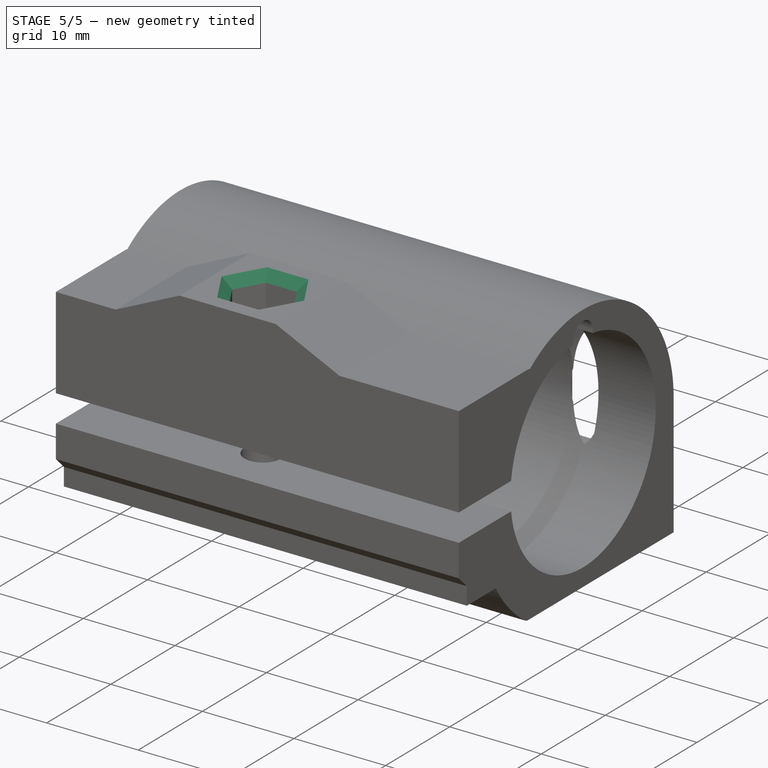
[diagram: stage 5 of 5 — iso view after this stage's code; geometry added in this stage tinted green]
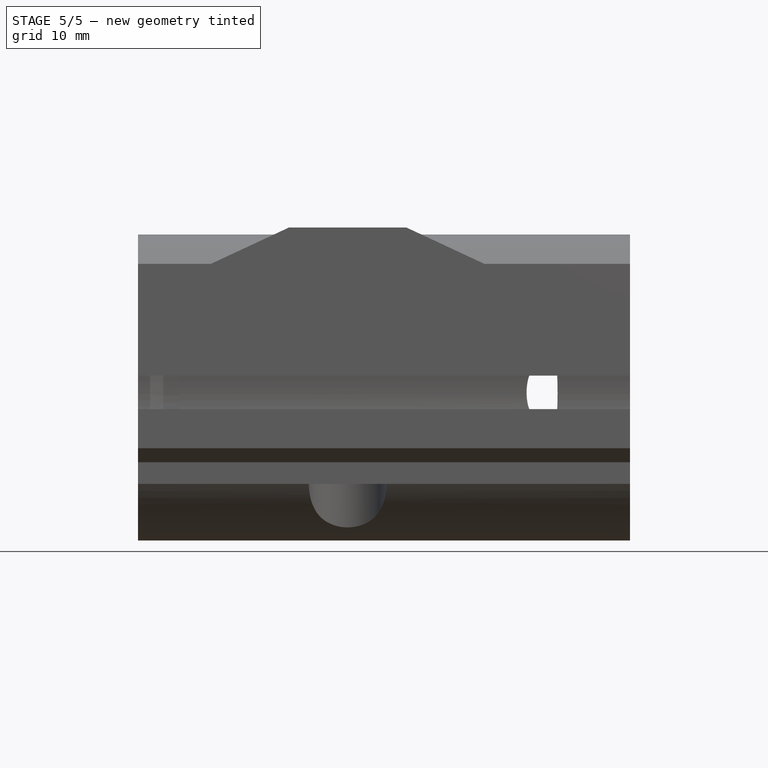
[diagram: stage 5 of 5 — front view after this stage's code; geometry added in this stage tinted green]
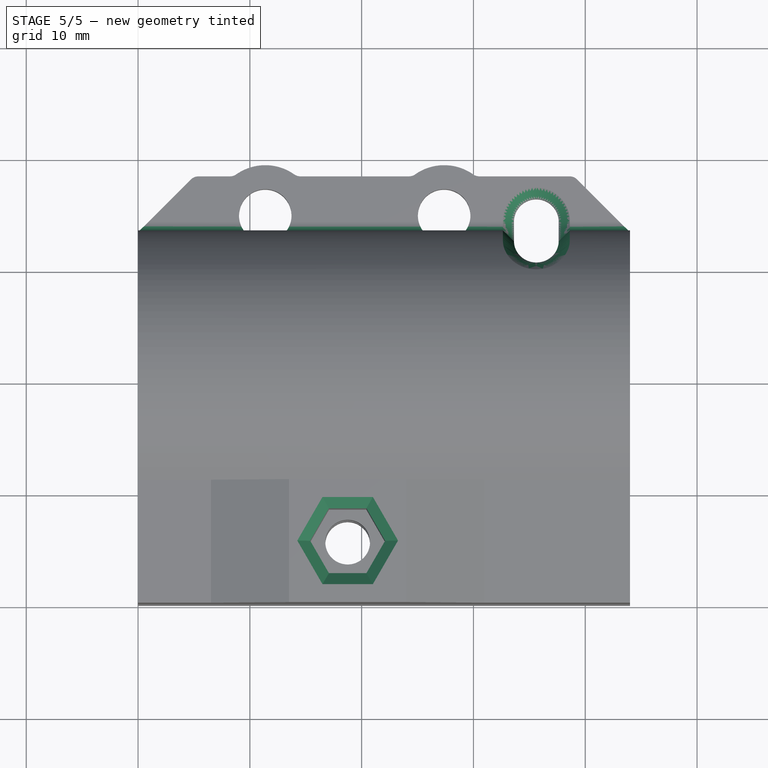
[diagram: stage 5 of 5 — top view after this stage's code; geometry added in this stage tinted green]
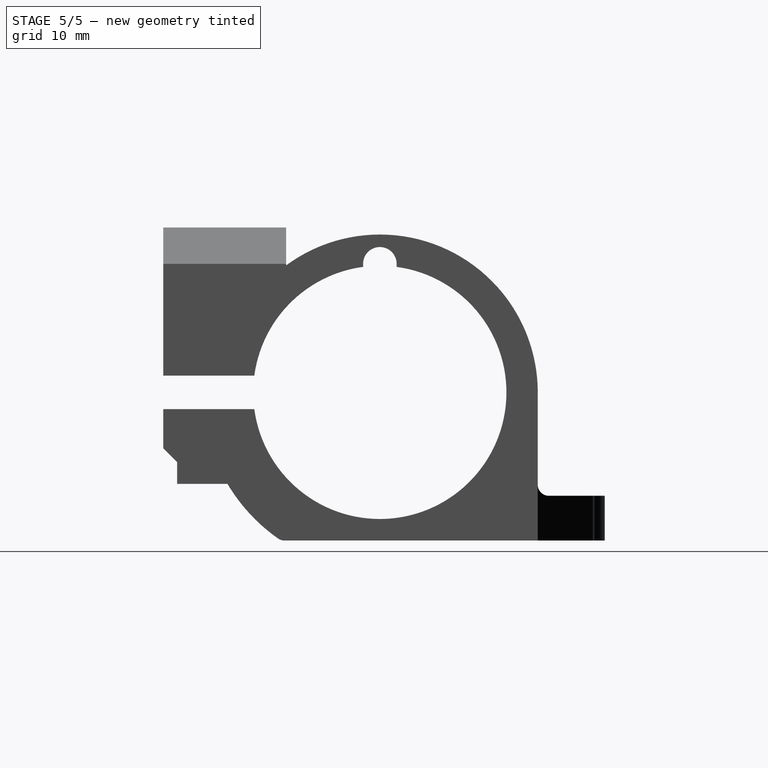
[diagram: stage 5 of 5 — right view after this stage's code; geometry added in this stage tinted green]
FEATURE [PartDesign::Chamfer] Chamfer
  Base = -> Pad001 [Edge210]
  BaseFeature = -> Pad001
  Size = 1.49
FEATURE [PartDesign::Fillet] Fillet
  Base = -> Chamfer [Edge169,Edge176,Edge174,Edge170,Edge172,Edge98,Edge108,Edge166,Edge100,Edge104,Edge84]
  BaseFeature = -> Chamfer
  Radius = 1
FEATURE [PartDesign::Chamfer] Chamfer001
  Base = -> Fillet [Edge62]
  BaseFeature = -> Fillet
  Size = 0.99
FEATURE [PartDesign::Chamfer] Chamfer002
  Base = -> Chamfer001 [Edge206,Edge205,Edge207,Edge209,Edge210,Edge208]
  BaseFeature = -> Chamfer001
  Size = 1
FEATURE [PartDesign::Body] Body
  Group = -> [Sketch,Sketch001,Sketch002,Sketch003,Sketch004,Sketch005,Sketch006,Sketch007,Sketch008,Sketch009,Sketch010,Sketch013,Sketch014,Sketch016,Pad,Pocket,Pocket001,Sketch018,Sketch020,Sketch021,Pocket002,Pocket003,Pocket004,Pocket005,Pocket006,Pocket007,Groove,Pocket008,Pocket009,Sketch022,Pocket010,Sketch023,Pad001,Chamfer,Fillet,Chamfer001,Chamfer002]
  Origin = -> Origin
  Tip = -> Chamfer002
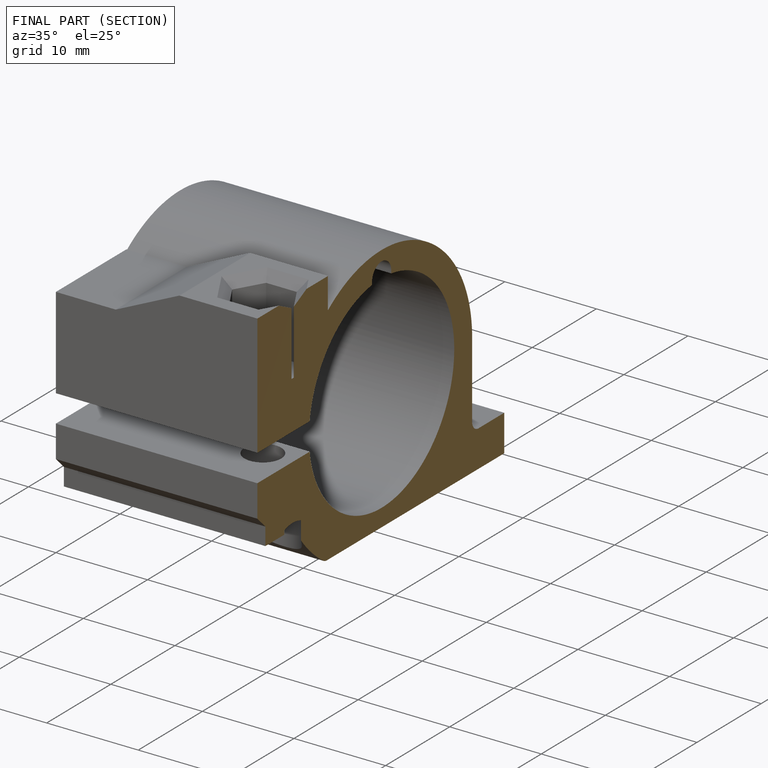
[diagram: finished part — half-section view (interior)]
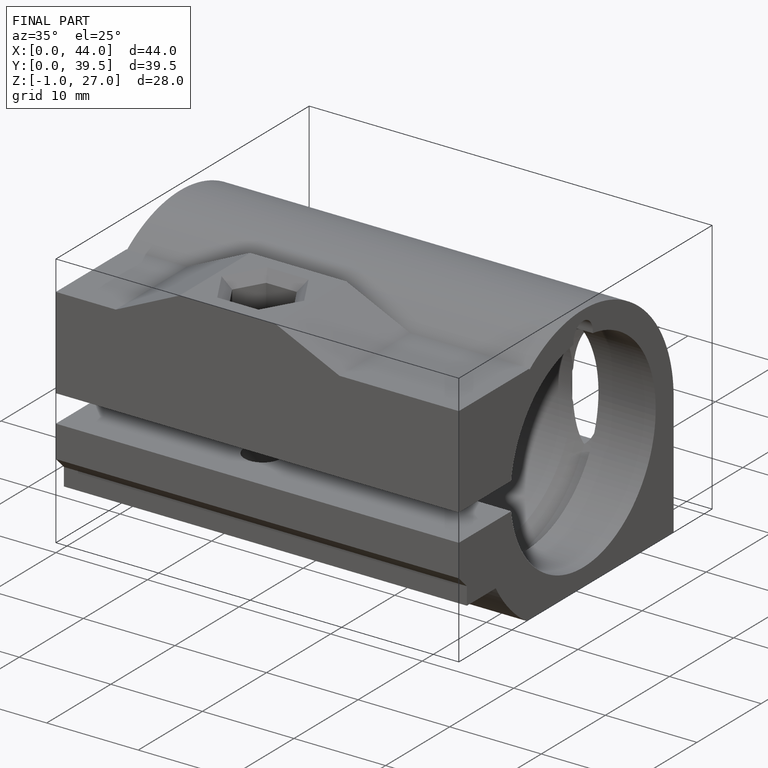
[diagram: finished part — iso view with bounding-box wireframe]
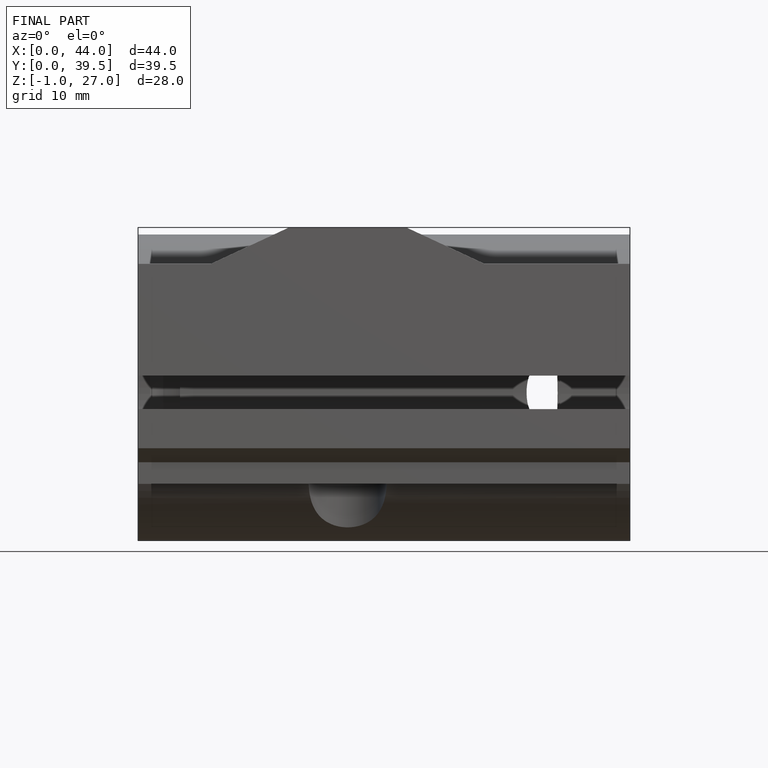
[diagram: finished part — front view with bounding-box wireframe]
